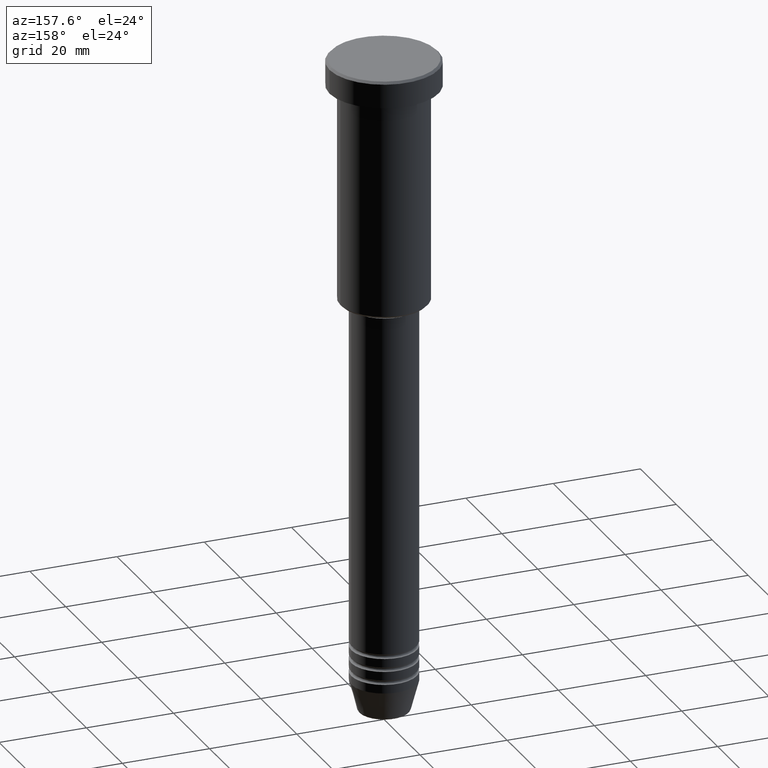
[diagram: clean part render]
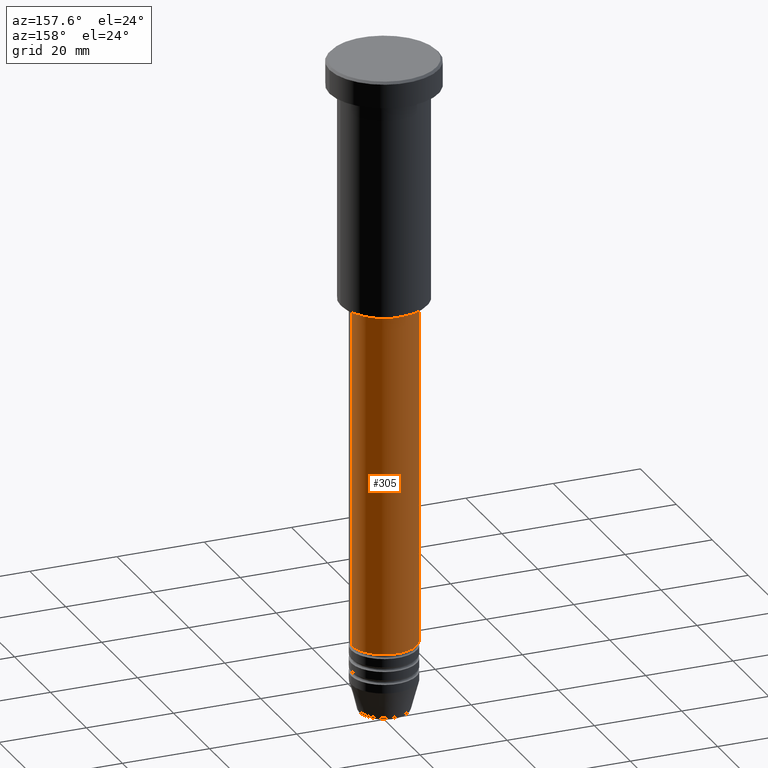
[diagram: same view with one face highlighted and labeled with its STEP entity id]
A machine part, auxiliary view. The second image highlights one B-rep face of the part: STEP entity #305.
In plain terms, the highlighted cylindrical surface (edge-blend (fillet) strip) has radius 7.5 mm, axis along (-0, -0, 1).
Its self-contained STEP definition (entity closure, byte-faithful):
#5 = FACE_OUTER_BOUND ( 'NONE', #127, .T. ) ;
#120 = DIRECTION ( 'NONE',  ( -0.000000000000000000, -0.000000000000000000, 1.000000000000000000 ) ) ;
#127 = EDGE_LOOP ( 'NONE', ( #392, #684, #332, #611 ) ) ;
#169 = EDGE_CURVE ( 'NONE', #1143, #858, #787, .T. ) ;
#192 = DIRECTION ( 'NONE',  ( 1.000000000000000000, 0.000000000000000000, 0.000000000000000000 ) ) ;
#234 = AXIS2_PLACEMENT_3D ( 'NONE', #743, #371, #1006 ) ;
#249 = DIRECTION ( 'NONE',  ( -0.000000000000000000, -0.000000000000000000, 1.000000000000000000 ) ) ;
#277 = CARTESIAN_POINT ( 'NONE',  ( -7.500000000000000000, 9.184850993605147944E-16, -134.9999999999999716 ) ) ;
#284 = CARTESIAN_POINT ( 'NONE',  ( 0.000000000000000000, 0.000000000000000000, -57.00000000000001421 ) ) ;
#289 = LINE ( 'NONE', #658, #952 ) ;
#305 = ADVANCED_FACE ( 'NONE', ( #5 ), #835, .T. ) ;
#332 = ORIENTED_EDGE ( 'NONE', *, *, #638, .F. ) ;
#371 = DIRECTION ( 'NONE',  ( -0.000000000000000000, -0.000000000000000000, 1.000000000000000000 ) ) ;
#388 = AXIS2_PLACEMENT_3D ( 'NONE', #637, #1002, #192 ) ;
#392 = ORIENTED_EDGE ( 'NONE', *, *, #1097, .T. ) ;
#416 = VERTEX_POINT ( 'NONE', #794 ) ;
#611 = ORIENTED_EDGE ( 'NONE', *, *, #654, .F. ) ;
#637 = CARTESIAN_POINT ( 'NONE',  ( 0.000000000000000000, 0.000000000000000000, -134.9999999999999716 ) ) ;
#638 = EDGE_CURVE ( 'NONE', #416, #858, #646, .T. ) ;
#646 = CIRCLE ( 'NONE', #910, 7.500000000000000000 ) ;
#654 = EDGE_CURVE ( 'NONE', #1070, #416, #289, .T. ) ;
#658 = CARTESIAN_POINT ( 'NONE',  ( 7.500000000000000000, 0.000000000000000000, 0.000000000000000000 ) ) ;
#684 = ORIENTED_EDGE ( 'NONE', *, *, #169, .T. ) ;
#743 = CARTESIAN_POINT ( 'NONE',  ( 0.000000000000000000, 0.000000000000000000, 0.000000000000000000 ) ) ;
#749 = DIRECTION ( 'NONE',  ( -0.000000000000000000, -0.000000000000000000, 1.000000000000000000 ) ) ;
#755 = DIRECTION ( 'NONE',  ( 1.000000000000000000, 0.000000000000000000, 0.000000000000000000 ) ) ;
#787 = LINE ( 'NONE', #1072, #1090 ) ;
#794 = CARTESIAN_POINT ( 'NONE',  ( 7.500000000000000000, 0.000000000000000000, -57.00000000000001421 ) ) ;
#835 = CYLINDRICAL_SURFACE ( 'NONE', #234, 7.500000000000000000 ) ;
#858 = VERTEX_POINT ( 'NONE', #872 ) ;
#872 = CARTESIAN_POINT ( 'NONE',  ( -7.500000000000000000, 9.184850993605147944E-16, -57.00000000000001421 ) ) ;
#910 = AXIS2_PLACEMENT_3D ( 'NONE', #284, #120, #755 ) ;
#952 = VECTOR ( 'NONE', #749, 1000.000000000000000 ) ;
#1002 = DIRECTION ( 'NONE',  ( -0.000000000000000000, -0.000000000000000000, 1.000000000000000000 ) ) ;
#1003 = CIRCLE ( 'NONE', #388, 7.500000000000000000 ) ;
#1006 = DIRECTION ( 'NONE',  ( 1.000000000000000000, 0.000000000000000000, 0.000000000000000000 ) ) ;
#1070 = VERTEX_POINT ( 'NONE', #1155 ) ;
#1072 = CARTESIAN_POINT ( 'NONE',  ( -7.500000000000000000, 9.184850993605147944E-16, 0.000000000000000000 ) ) ;
#1090 = VECTOR ( 'NONE', #249, 1000.000000000000000 ) ;
#1097 = EDGE_CURVE ( 'NONE', #1070, #1143, #1003, .T. ) ;
#1143 = VERTEX_POINT ( 'NONE', #277 ) ;
#1155 = CARTESIAN_POINT ( 'NONE',  ( 7.500000000000000000, 0.000000000000000000, -134.9999999999999716 ) ) ;